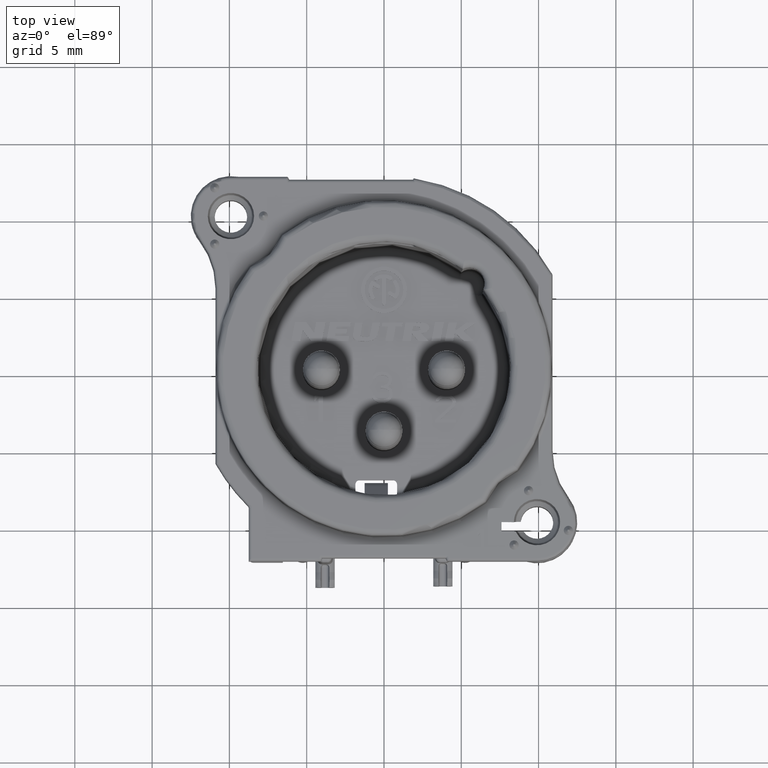
[diagram: clean part render]
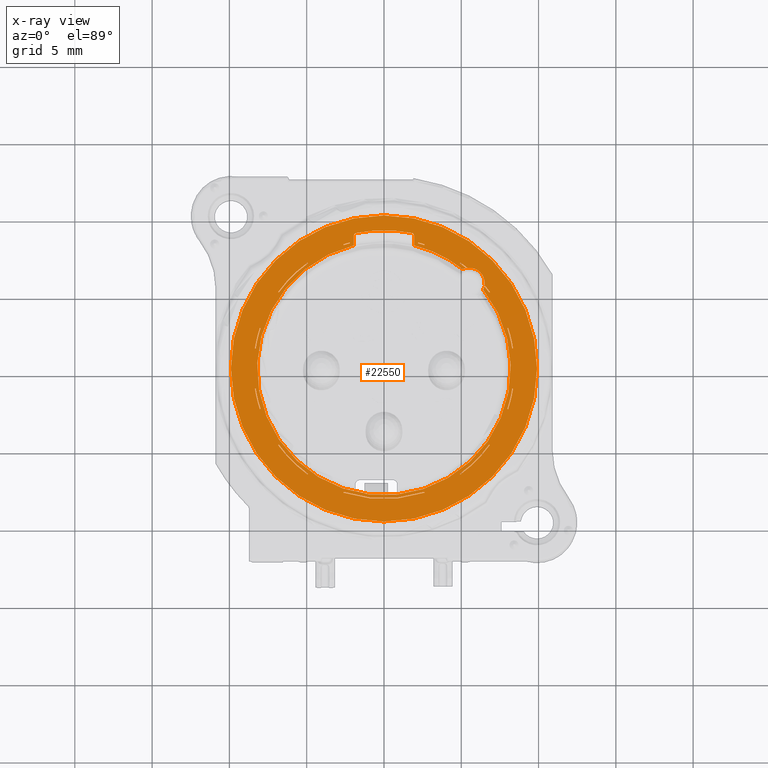
[diagram: x-ray — body ghosted, one internal face saturated and labeled with its STEP entity id]
A machine part, top view, then the same camera in x-ray: the body is ghosted and one INTERNAL B-rep face — a face not visible from any outside direction — is saturated and labeled: STEP entity #22550.
In plain terms, the highlighted planar face has unit normal (0, 0, -1).
Its self-contained STEP definition (entity closure, byte-faithful):
#54=DIRECTION('',(1.E0,-3.526573437755E-11,0.E0));
#55=VECTOR('',#54,5.304026089074E-2);
#56=CARTESIAN_POINT('',(-8.349382194067E0,1.300121908860E0,2.7E0));
#57=LINE('',#56,#55);
#63=CARTESIAN_POINT('',(5.515432893255E0,5.515432893255E0,2.7E0));
#64=DIRECTION('',(0.E0,0.E0,1.E0));
#65=DIRECTION('',(9.081595900515E-1,-4.186241261531E-1,0.E0));
#66=AXIS2_PLACEMENT_3D('',#63,#64,#65);
#68=DIRECTION('',(0.E0,1.E0,0.E0));
#69=VECTOR('',#68,6.140104234412E-1);
#70=CARTESIAN_POINT('',(-1.95E0,7.964766161037E0,2.7E0));
#71=LINE('',#70,#69);
#72=CARTESIAN_POINT('',(0.E0,0.E0,2.7E0));
#73=DIRECTION('',(0.E0,0.E0,-1.E0));
#74=DIRECTION('',(-2.006225857042E-1,9.796686062671E-1,0.E0));
#75=AXIS2_PLACEMENT_3D('',#72,#73,#74);
#77=DIRECTION('',(0.E0,-1.E0,0.E0));
#78=VECTOR('',#77,6.140104234412E-1);
#79=CARTESIAN_POINT('',(1.95E0,8.578776584478E0,2.7E0));
#80=LINE('',#79,#78);
#81=CARTESIAN_POINT('',(0.E0,0.E0,2.7E0));
#82=DIRECTION('',(0.E0,0.E0,-1.E0));
#83=DIRECTION('',(2.378048780488E-1,9.713129464679E-1,0.E0));
#84=AXIS2_PLACEMENT_3D('',#81,#82,#83);
#86=CARTESIAN_POINT('',(5.515432893255E0,5.515432893255E0,2.7E0));
#87=DIRECTION('',(0.E0,0.E0,1.E0));
#88=DIRECTION('',(-1.941287962017E-1,9.809760499040E-1,0.E0));
#89=AXIS2_PLACEMENT_3D('',#86,#87,#88);
#91=CARTESIAN_POINT('',(5.515432893255E0,5.515432893255E0,2.7E0));
#92=DIRECTION('',(0.E0,0.E0,1.E0));
#93=DIRECTION('',(9.921263900771E-1,-1.252406727570E-1,0.E0));
#94=AXIS2_PLACEMENT_3D('',#91,#92,#93);
#106=CARTESIAN_POINT('',(0.E0,0.E0,2.7E0));
#107=DIRECTION('',(0.E0,0.E0,-1.E0));
#108=DIRECTION('',(0.E0,1.E0,0.E0));
#109=AXIS2_PLACEMENT_3D('',#106,#107,#108);
#147=CARTESIAN_POINT('',(0.E0,0.E0,2.7E0));
#148=DIRECTION('',(0.E0,0.E0,-1.E0));
#149=DIRECTION('',(0.E0,-1.E0,0.E0));
#150=AXIS2_PLACEMENT_3D('',#147,#148,#149);
#1312=CARTESIAN_POINT('',(0.E0,0.E0,2.7E0));
#1313=DIRECTION('',(0.E0,0.E0,-1.E0));
#1314=DIRECTION('',(7.701253589742E-1,6.378925704731E-1,0.E0));
#1315=AXIS2_PLACEMENT_3D('',#1312,#1313,#1314);
#1339=CARTESIAN_POINT('',(0.E0,0.E0,2.7E0));
#1340=DIRECTION('',(0.E0,0.E0,-1.E0));
#1341=DIRECTION('',(9.502481660337E-1,3.114938570015E-1,0.E0));
#1342=AXIS2_PLACEMENT_3D('',#1339,#1340,#1341);
#1375=CARTESIAN_POINT('',(0.E0,0.E0,2.7E0));
#1376=DIRECTION('',(0.E0,0.E0,-1.E0));
#1377=DIRECTION('',(9.880925673401E-1,-1.538605809400E-1,0.E0));
#1378=AXIS2_PLACEMENT_3D('',#1375,#1376,#1377);
#1411=CARTESIAN_POINT('',(0.E0,0.E0,2.7E0));
#1412=DIRECTION('',(0.E0,0.E0,-1.E0));
#1413=DIRECTION('',(8.105456819702E-1,-5.856754198696E-1,0.E0));
#1414=AXIS2_PLACEMENT_3D('',#1411,#1412,#1413);
#1447=CARTESIAN_POINT('',(0.E0,0.E0,2.7E0));
#1448=DIRECTION('',(0.E0,0.E0,-1.E0));
#1449=DIRECTION('',(3.114938570028E-1,-9.502481660332E-1,0.E0));
#1450=AXIS2_PLACEMENT_3D('',#1447,#1448,#1449);
#1483=CARTESIAN_POINT('',(0.E0,0.E0,2.7E0));
#1484=DIRECTION('',(0.E0,0.E0,-1.E0));
#1485=DIRECTION('',(-5.856754198634E-1,-8.105456819747E-1,0.E0));
#1486=AXIS2_PLACEMENT_3D('',#1483,#1484,#1485);
#1519=CARTESIAN_POINT('',(0.E0,0.E0,2.7E0));
#1520=DIRECTION('',(0.E0,0.E0,-1.E0));
#1521=DIRECTION('',(-9.502481660302E-1,-3.114938570120E-1,0.E0));
#1522=AXIS2_PLACEMENT_3D('',#1519,#1520,#1521);
#1555=CARTESIAN_POINT('',(0.E0,0.E0,2.7E0));
#1556=DIRECTION('',(0.E0,0.E0,-1.E0));
#1557=DIRECTION('',(-9.880925673419E-1,1.538605809285E-1,0.E0));
#1558=AXIS2_PLACEMENT_3D('',#1555,#1556,#1557);
#1591=CARTESIAN_POINT('',(0.E0,0.E0,2.7E0));
#1592=DIRECTION('',(0.E0,0.E0,-1.E0));
#1593=DIRECTION('',(-8.105456819795E-1,5.856754198568E-1,0.E0));
#1594=AXIS2_PLACEMENT_3D('',#1591,#1592,#1593);
#1627=CARTESIAN_POINT('',(0.E0,0.E0,2.7E0));
#1628=DIRECTION('',(0.E0,0.E0,-1.E0));
#1629=DIRECTION('',(-3.114938570140E-1,9.502481660296E-1,0.E0));
#1630=AXIS2_PLACEMENT_3D('',#1627,#1628,#1629);
#1663=CARTESIAN_POINT('',(0.E0,0.E0,2.7E0));
#1664=DIRECTION('',(0.E0,0.E0,-1.E0));
#1665=DIRECTION('',(2.603694566774E-1,9.655090605631E-1,0.E0));
#1666=AXIS2_PLACEMENT_3D('',#1663,#1664,#1665);
#1699=CARTESIAN_POINT('',(0.E0,0.E0,2.7E0));
#1700=DIRECTION('',(0.E0,0.E0,-1.E0));
#1701=DIRECTION('',(5.856754198668E-1,8.105456819722E-1,0.E0));
#1702=AXIS2_PLACEMENT_3D('',#1699,#1700,#1701);
#1749=CARTESIAN_POINT('',(0.E0,0.E0,2.7E0));
#1750=DIRECTION('',(0.E0,0.E0,-1.E0));
#1751=DIRECTION('',(5.864628337465E-1,8.099761383115E-1,0.E0));
#1752=AXIS2_PLACEMENT_3D('',#1749,#1750,#1751);
#2390=DIRECTION('',(-1.404519808107E-11,-1.E0,0.E0));
#2391=VECTOR('',#2390,5.428910072408E-2);
#2392=CARTESIAN_POINT('',(2.200121908860E0,8.158551561691E0,2.7E0));
#2393=LINE('',#2392,#2391);
#2399=CARTESIAN_POINT('',(0.E0,0.E0,2.7E0));
#2400=DIRECTION('',(0.E0,0.E0,-1.E0));
#2401=DIRECTION('',(2.619942776560E-1,9.650694267645E-1,0.E0));
#2402=AXIS2_PLACEMENT_3D('',#2399,#2400,#2401);
#2414=DIRECTION('',(4.539904997543E-1,8.910065241809E-1,0.E0));
#2415=VECTOR('',#2414,5.304026079342E-2);
#2416=CARTESIAN_POINT('',(2.608043317218E0,7.982337784483E0,2.7E0));
#2417=LINE('',#2416,#2415);
#2538=DIRECTION('',(-4.539904997709E-1,-8.910065241724E-1,0.E0));
#2539=VECTOR('',#2538,5.304026071909E-2);
#2540=CARTESIAN_POINT('',(4.948957297757E0,6.849111012578E0,2.7E0));
#2541=LINE('',#2540,#2539);
#2624=DIRECTION('',(3.034809832076E-12,1.E0,0.E0));
#2625=VECTOR('',#2624,5.428910079076E-2);
#2626=CARTESIAN_POINT('',(-2.200121908860E0,8.104262460966E0,2.7E0));
#2627=LINE('',#2626,#2625);
#2633=CARTESIAN_POINT('',(0.E0,0.E0,2.7E0));
#2634=DIRECTION('',(0.E0,0.E0,-1.E0));
#2635=DIRECTION('',(-3.105702562383E-1,9.505504278785E-1,0.E0));
#2636=AXIS2_PLACEMENT_3D('',#2633,#2634,#2635);
#2648=DIRECTION('',(4.539904997081E-1,-8.910065242044E-1,0.E0));
#2649=VECTOR('',#2648,5.304026089580E-2);
#2650=CARTESIAN_POINT('',(-2.632123091769E0,8.029597002986E0,2.7E0));
#2651=LINE('',#2650,#2649);
#2766=DIRECTION('',(-4.539904997246E-1,8.910065241960E-1,0.E0));
#2767=VECTOR('',#2766,5.304026065712E-2);
#2768=CARTESIAN_POINT('',(-4.924877523288E0,6.801851794231E0,2.7E0));
#2769=LINE('',#2768,#2767);
#2775=CARTESIAN_POINT('',(0.E0,0.E0,2.7E0));
#2776=DIRECTION('',(0.E0,0.E0,-1.E0));
#2777=DIRECTION('',(-8.099761383115E-1,5.864628337465E-1,0.E0));
#2778=AXIS2_PLACEMENT_3D('',#2775,#2776,#2777);
#2790=DIRECTION('',(8.910065241724E-1,-4.539904997709E-1,0.E0));
#2791=VECTOR('',#2790,5.304026094476E-2);
#2792=CARTESIAN_POINT('',(-6.849111012779E0,4.948957297860E0,2.7E0));
#2793=LINE('',#2792,#2791);
#2908=DIRECTION('',(-8.910065241809E-1,4.539904997542E-1,0.E0));
#2909=VECTOR('',#2908,5.304026074572E-2);
#2910=CARTESIAN_POINT('',(-7.982337784483E0,2.608043317218E0,2.7E0));
#2911=LINE('',#2910,#2909);
#2917=CARTESIAN_POINT('',(0.E0,0.E0,2.7E0));
#2918=DIRECTION('',(0.E0,0.E0,-1.E0));
#2919=DIRECTION('',(-9.879425786437E-1,1.548207392530E-1,0.E0));
#2920=AXIS2_PLACEMENT_3D('',#2917,#2918,#2919);
#16350=CARTESIAN_POINT('',(0.E0,0.E0,2.7E0));
#16351=DIRECTION('',(0.E0,0.E0,1.E0));
#16352=DIRECTION('',(-2.378048780488E-1,9.713129464679E-1,0.E0));
#16353=AXIS2_PLACEMENT_3D('',#16350,#16351,#16352);
#16376=CARTESIAN_POINT('',(1.95E0,8.578776584478E0,2.7E0));
#16378=CARTESIAN_POINT('',(1.95E0,8.578776584478E0,2.7E0));
#16379=CARTESIAN_POINT('',(1.950000000032E0,8.602134908610E0,2.7E0));
#16380=CARTESIAN_POINT('',(1.942273362003E0,8.645624592729E0,2.7E0));
#16381=CARTESIAN_POINT('',(1.909973589364E0,8.703636616568E0,2.699999999999E0));
#16382=CARTESIAN_POINT('',(1.859457158406E0,8.747109287319E0,2.700000000005E0));
#16383=CARTESIAN_POINT('',(1.818430073848E0,8.763353037773E0,2.699999999989E0));
#16384=CARTESIAN_POINT('',(1.795572142117E0,8.768034026171E0,2.699999999989E0));
#16390=CARTESIAN_POINT('',(1.795572142117E0,8.768034026171E0,2.699999999989E0));
#16396=CARTESIAN_POINT('',(-1.795572142117E0,8.768034026171E0,
2.699999999989E0));
#16403=CARTESIAN_POINT('',(-1.795572142117E0,8.768034026171E0,
2.699999999989E0));
#16404=CARTESIAN_POINT('',(-1.818465818642E0,8.763345717734E0,
2.699999999989E0));
#16405=CARTESIAN_POINT('',(-1.859532717103E0,8.747022878452E0,
2.700000000005E0));
#16406=CARTESIAN_POINT('',(-1.909784034211E0,8.703872645540E0,
2.699999999999E0));
#16407=CARTESIAN_POINT('',(-1.942353347184E0,8.645505213761E0,2.7E0));
#16408=CARTESIAN_POINT('',(-1.950000000032E0,8.602085701230E0,2.7E0));
#16409=CARTESIAN_POINT('',(-1.95E0,8.578776584478E0,2.7E0));
#16419=CARTESIAN_POINT('',(-1.95E0,8.578776584478E0,2.7E0));
#16823=CARTESIAN_POINT('',(0.E0,0.E0,2.7E0));
#16824=DIRECTION('',(0.E0,0.E0,-1.E0));
#16825=DIRECTION('',(7.736034815011E-1,6.336699877771E-1,0.E0));
#16826=AXIS2_PLACEMENT_3D('',#16823,#16824,#16825);
#16833=DIRECTION('',(8.910065241959E-1,4.539904997248E-1,0.E0));
#16834=VECTOR('',#16833,5.304026071952E-2);
#16835=CARTESIAN_POINT('',(6.801851794231E0,4.924877523288E0,2.7E0));
#16836=LINE('',#16835,#16834);
#16957=DIRECTION('',(-8.910065242043E-1,-4.539904997082E-1,0.E0));
#16958=VECTOR('',#16957,5.304026065397E-2);
#16959=CARTESIAN_POINT('',(8.029597002771E0,2.632123091659E0,2.7E0));
#16960=LINE('',#16959,#16958);
#16966=CARTESIAN_POINT('',(0.E0,0.E0,2.7E0));
#16967=DIRECTION('',(0.E0,0.E0,-1.E0));
#16968=DIRECTION('',(9.505504278785E-1,3.105702562383E-1,0.E0));
#16969=AXIS2_PLACEMENT_3D('',#16966,#16967,#16968);
#16981=DIRECTION('',(1.E0,-1.658628197033E-11,0.E0));
#16982=VECTOR('',#16981,5.304026099921E-2);
#16983=CARTESIAN_POINT('',(8.296341933176E0,1.300121908861E0,2.7E0));
#16984=LINE('',#16983,#16982);
#17312=DIRECTION('',(-1.E0,3.520293940750E-11,0.E0));
#17313=VECTOR('',#17312,5.304026067826E-2);
#17314=CARTESIAN_POINT('',(8.349382193855E0,-1.300121908860E0,2.7E0));
#17315=LINE('',#17314,#17313);
#17321=CARTESIAN_POINT('',(0.E0,0.E0,2.7E0));
#17322=DIRECTION('',(0.E0,0.E0,-1.E0));
#17323=DIRECTION('',(9.879425786437E-1,-1.548207392530E-1,0.E0));
#17324=AXIS2_PLACEMENT_3D('',#17321,#17322,#17323);
#17336=DIRECTION('',(8.910065241808E-1,-4.539904997543E-1,0.E0));
#17337=VECTOR('',#17336,5.304026096852E-2);
#17338=CARTESIAN_POINT('',(7.982337784483E0,-2.608043317218E0,2.7E0));
#17339=LINE('',#17338,#17337);
#17460=DIRECTION('',(-8.910065241724E-1,4.539904997709E-1,0.E0));
#17461=VECTOR('',#17460,5.304026065668E-2);
#17462=CARTESIAN_POINT('',(6.849111012522E0,-4.948957297729E0,2.7E0));
#17463=LINE('',#17462,#17461);
#17469=CARTESIAN_POINT('',(0.E0,0.E0,2.7E0));
#17470=DIRECTION('',(0.E0,0.E0,-1.E0));
#17471=DIRECTION('',(8.099761383115E-1,-5.864628337465E-1,0.E0));
#17472=AXIS2_PLACEMENT_3D('',#17469,#17470,#17471);
#17484=DIRECTION('',(4.539904997247E-1,-8.910065241959E-1,0.E0));
#17485=VECTOR('',#17484,5.304026094520E-2);
#17486=CARTESIAN_POINT('',(4.924877523288E0,-6.801851794231E0,2.7E0));
#17487=LINE('',#17486,#17485);
#17608=DIRECTION('',(-4.539904997082E-1,8.910065242043E-1,0.E0));
#17609=VECTOR('',#17608,5.304026067990E-2);
#17610=CARTESIAN_POINT('',(2.632123091671E0,-8.029597002794E0,2.7E0));
#17611=LINE('',#17610,#17609);
#17617=CARTESIAN_POINT('',(0.E0,0.E0,2.7E0));
#17618=DIRECTION('',(0.E0,0.E0,-1.E0));
#17619=DIRECTION('',(3.105702562383E-1,-9.505504278785E-1,0.E0));
#17620=AXIS2_PLACEMENT_3D('',#17617,#17618,#17619);
#17632=DIRECTION('',(-4.539904997543E-1,-8.910065241809E-1,0.E0));
#17633=VECTOR('',#17632,5.304026085444E-2);
#17634=CARTESIAN_POINT('',(-2.608043317218E0,-7.982337784483E0,2.7E0));
#17635=LINE('',#17634,#17633);
#17756=DIRECTION('',(4.539904997709E-1,8.910065241724E-1,0.E0));
#17757=VECTOR('',#17756,5.304026079510E-2);
#17758=CARTESIAN_POINT('',(-4.948957297792E0,-6.849111012645E0,2.7E0));
#17759=LINE('',#17758,#17757);
#17765=CARTESIAN_POINT('',(0.E0,0.E0,2.7E0));
#17766=DIRECTION('',(0.E0,0.E0,-1.E0));
#17767=DIRECTION('',(-5.864628337465E-1,-8.099761383115E-1,0.E0));
#17768=AXIS2_PLACEMENT_3D('',#17765,#17766,#17767);
#17780=DIRECTION('',(-8.910065241959E-1,-4.539904997247E-1,0.E0));
#17781=VECTOR('',#17780,5.304026079553E-2);
#17782=CARTESIAN_POINT('',(-6.801851794231E0,-4.924877523288E0,2.7E0));
#17783=LINE('',#17782,#17781);
#17904=DIRECTION('',(8.910065242043E-1,4.539904997082E-1,0.E0));
#17905=VECTOR('',#17904,5.304026085638E-2);
#17906=CARTESIAN_POINT('',(-8.029597002951E0,-2.632123091751E0,2.7E0));
#17907=LINE('',#17906,#17905);
#17913=CARTESIAN_POINT('',(0.E0,0.E0,2.7E0));
#17914=DIRECTION('',(0.E0,0.E0,-1.E0));
#17915=DIRECTION('',(-9.505504278785E-1,-3.105702562383E-1,0.E0));
#17916=AXIS2_PLACEMENT_3D('',#17913,#17914,#17915);
#17928=DIRECTION('',(-1.E0,1.669094055824E-11,0.E0));
#17929=VECTOR('',#17928,5.304026077780E-2);
#17930=CARTESIAN_POINT('',(-8.296341933176E0,-1.300121908860E0,2.7E0));
#17931=LINE('',#17930,#17929);
#21403=CARTESIAN_POINT('',(1.95E0,7.964766161037E0,2.7E0));
#21404=CARTESIAN_POINT('',(5.096808767102E0,6.423592483307E0,2.7E0));
#21405=VERTEX_POINT('',#21403);
#21406=VERTEX_POINT('',#21404);
#21407=CARTESIAN_POINT('',(-1.95E0,7.964766161037E0,2.7E0));
#21408=CARTESIAN_POINT('',(6.423592483307E0,5.096808767102E0,2.7E0));
#21409=VERTEX_POINT('',#21407);
#21410=VERTEX_POINT('',#21408);
#21427=CARTESIAN_POINT('',(0.E0,9.903460533872E0,2.7E0));
#21428=CARTESIAN_POINT('',(0.E0,-9.903460533872E0,2.7E0));
#21429=VERTEX_POINT('',#21427);
#21430=VERTEX_POINT('',#21428);
#21611=VERTEX_POINT('',#16390);
#21612=VERTEX_POINT('',#16376);
#21621=VERTEX_POINT('',#16419);
#21622=VERTEX_POINT('',#16396);
#21654=CARTESIAN_POINT('',(6.507559283332E0,5.390192220498E0,2.7E0));
#21655=CARTESIAN_POINT('',(6.849111012665E0,4.948957297875E0,2.7E0));
#21656=VERTEX_POINT('',#21654);
#21657=VERTEX_POINT('',#21655);
#21658=CARTESIAN_POINT('',(8.029597002984E0,2.632123091662E0,2.7E0));
#21659=CARTESIAN_POINT('',(8.349382194047E0,1.300121908797E0,2.7E0));
#21660=VERTEX_POINT('',#21658);
#21661=VERTEX_POINT('',#21659);
#21662=CARTESIAN_POINT('',(8.349382194024E0,-1.300121908943E0,2.7E0));
#21663=CARTESIAN_POINT('',(8.029597002939E0,-2.632123091800E0,2.7E0));
#21664=VERTEX_POINT('',#21662);
#21665=VERTEX_POINT('',#21663);
#21666=CARTESIAN_POINT('',(6.849111012648E0,-4.948957297898E0,2.7E0));
#21667=CARTESIAN_POINT('',(4.948957297790E0,-6.849111012726E0,2.7E0));
#21668=VERTEX_POINT('',#21666);
#21669=VERTEX_POINT('',#21667);
#21670=CARTESIAN_POINT('',(2.632123091674E0,-8.029597002981E0,2.7E0));
#21671=CARTESIAN_POINT('',(-2.632123091750E0,-8.029597002956E0,2.7E0));
#21672=VERTEX_POINT('',#21670);
#21673=VERTEX_POINT('',#21671);
#21674=CARTESIAN_POINT('',(-4.948957297846E0,-6.849111012686E0,2.7E0));
#21675=CARTESIAN_POINT('',(-6.849111012686E0,-4.948957297846E0,2.7E0));
#21676=VERTEX_POINT('',#21674);
#21677=VERTEX_POINT('',#21675);
#21678=CARTESIAN_POINT('',(-8.029597002955E0,-2.632123091751E0,2.7E0));
#21679=CARTESIAN_POINT('',(-8.349382194031E0,-1.300121908898E0,2.7E0));
#21680=VERTEX_POINT('',#21678);
#21681=VERTEX_POINT('',#21679);
#21682=CARTESIAN_POINT('',(-8.349382194039E0,1.300121908846E0,2.7E0));
#21683=CARTESIAN_POINT('',(-8.029597002971E0,2.632123091702E0,2.7E0));
#21684=VERTEX_POINT('',#21682);
#21685=VERTEX_POINT('',#21683);
#21686=CARTESIAN_POINT('',(-6.849111012726E0,4.948957297790E0,2.7E0));
#21687=CARTESIAN_POINT('',(-4.948957297898E0,6.849111012649E0,2.7E0));
#21688=VERTEX_POINT('',#21686);
#21689=VERTEX_POINT('',#21687);
#21690=CARTESIAN_POINT('',(-2.632123091769E0,8.029597002950E0,2.7E0));
#21691=CARTESIAN_POINT('',(-2.200121908874E0,8.158551561772E0,2.7E0));
#21692=VERTEX_POINT('',#21690);
#21693=VERTEX_POINT('',#21691);
#21694=CARTESIAN_POINT('',(2.200121908924E0,8.158551561759E0,2.7E0));
#21695=CARTESIAN_POINT('',(2.632123091723E0,8.029597002964E0,2.7E0));
#21696=VERTEX_POINT('',#21694);
#21697=VERTEX_POINT('',#21695);
#21698=CARTESIAN_POINT('',(4.948957297875E0,6.849111012665E0,2.7E0));
#21699=CARTESIAN_POINT('',(5.390192220498E0,6.507559283332E0,2.7E0));
#21700=VERTEX_POINT('',#21698);
#21701=VERTEX_POINT('',#21699);
#21765=CARTESIAN_POINT('',(-2.200121908860E0,8.104262460966E0,2.7E0));
#21766=VERTEX_POINT('',#21765);
#21767=CARTESIAN_POINT('',(-2.608043317220E0,7.982337784483E0,2.7E0));
#21768=VERTEX_POINT('',#21767);
#21769=CARTESIAN_POINT('',(-4.924877523288E0,6.801851794231E0,2.7E0));
#21770=VERTEX_POINT('',#21769);
#21771=CARTESIAN_POINT('',(-6.801851794233E0,4.924877523286E0,2.7E0));
#21772=VERTEX_POINT('',#21771);
#21773=CARTESIAN_POINT('',(-7.982337784483E0,2.608043317218E0,2.7E0));
#21774=VERTEX_POINT('',#21773);
#21775=CARTESIAN_POINT('',(-8.296341933176E0,1.300121908858E0,2.7E0));
#21776=VERTEX_POINT('',#21775);
#21777=CARTESIAN_POINT('',(-7.982337784483E0,-2.608043317220E0,2.7E0));
#21778=VERTEX_POINT('',#21777);
#21779=CARTESIAN_POINT('',(-6.801851794231E0,-4.924877523288E0,2.7E0));
#21780=VERTEX_POINT('',#21779);
#21781=CARTESIAN_POINT('',(-4.924877523286E0,-6.801851794233E0,2.7E0));
#21782=VERTEX_POINT('',#21781);
#21783=CARTESIAN_POINT('',(-2.608043317218E0,-7.982337784483E0,2.7E0));
#21784=VERTEX_POINT('',#21783);
#21785=CARTESIAN_POINT('',(2.608043317220E0,-7.982337784483E0,2.7E0));
#21786=VERTEX_POINT('',#21785);
#21787=CARTESIAN_POINT('',(4.924877523288E0,-6.801851794231E0,2.7E0));
#21788=VERTEX_POINT('',#21787);
#21789=CARTESIAN_POINT('',(6.801851794233E0,-4.924877523286E0,2.7E0));
#21790=VERTEX_POINT('',#21789);
#21791=CARTESIAN_POINT('',(7.982337784483E0,-2.608043317218E0,2.7E0));
#21792=VERTEX_POINT('',#21791);
#21793=CARTESIAN_POINT('',(8.296341933176E0,-1.300121908858E0,2.7E0));
#21794=VERTEX_POINT('',#21793);
#21795=CARTESIAN_POINT('',(8.296341933176E0,1.300121908861E0,2.7E0));
#21796=VERTEX_POINT('',#21795);
#21797=CARTESIAN_POINT('',(7.982337784483E0,2.608043317220E0,2.7E0));
#21798=VERTEX_POINT('',#21797);
#21799=CARTESIAN_POINT('',(6.801851794231E0,4.924877523288E0,2.7E0));
#21800=VERTEX_POINT('',#21799);
#21801=CARTESIAN_POINT('',(4.924877523286E0,6.801851794233E0,2.7E0));
#21802=VERTEX_POINT('',#21801);
#21803=CARTESIAN_POINT('',(2.608043317218E0,7.982337784483E0,2.7E0));
#21804=VERTEX_POINT('',#21803);
#21805=CARTESIAN_POINT('',(2.200121908859E0,8.104262460967E0,2.7E0));
#21806=VERTEX_POINT('',#21805);
#21807=CARTESIAN_POINT('',(-8.296341933176E0,-1.300121908860E0,2.7E0));
#21808=VERTEX_POINT('',#21807);
#21809=CARTESIAN_POINT('',(6.496408943159E0,5.321304097053E0,2.7E0));
#21810=VERTEX_POINT('',#21809);
#21811=CARTESIAN_POINT('',(5.321304097053E0,6.496408943159E0,2.7E0));
#21812=VERTEX_POINT('',#21811);
#22406=CARTESIAN_POINT('',(0.E0,0.E0,2.7E0));
#22407=DIRECTION('',(0.E0,0.E0,-1.E0));
#22408=DIRECTION('',(0.E0,-1.E0,0.E0));
#22409=AXIS2_PLACEMENT_3D('',#22406,#22407,#22408);
#22410=PLANE('',#22409);
#22412=ORIENTED_EDGE('',*,*,#22411,.F.);
#22414=ORIENTED_EDGE('',*,*,#22413,.F.);
#22415=EDGE_LOOP('',(#22412,#22414));
#22416=FACE_OUTER_BOUND('',#22415,.F.);
#22418=ORIENTED_EDGE('',*,*,#22417,.T.);
#22420=ORIENTED_EDGE('',*,*,#22419,.F.);
#22422=ORIENTED_EDGE('',*,*,#22421,.F.);
#22424=ORIENTED_EDGE('',*,*,#22423,.F.);
#22426=ORIENTED_EDGE('',*,*,#22425,.F.);
#22428=ORIENTED_EDGE('',*,*,#22427,.T.);
#22430=ORIENTED_EDGE('',*,*,#22429,.F.);
#22432=ORIENTED_EDGE('',*,*,#22431,.T.);
#22434=ORIENTED_EDGE('',*,*,#22433,.F.);
#22436=ORIENTED_EDGE('',*,*,#22435,.T.);
#22438=ORIENTED_EDGE('',*,*,#22437,.T.);
#22440=ORIENTED_EDGE('',*,*,#22439,.F.);
#22442=ORIENTED_EDGE('',*,*,#22441,.F.);
#22444=ORIENTED_EDGE('',*,*,#22443,.F.);
#22446=ORIENTED_EDGE('',*,*,#22445,.T.);
#22448=ORIENTED_EDGE('',*,*,#22447,.F.);
#22449=EDGE_LOOP('',(#22418,#22420,#22422,#22424,#22426,#22428,#22430,#22432,
#22434,#22436,#22438,#22440,#22442,#22444,#22446,#22448));
#22450=FACE_BOUND('',#22449,.F.);
#22452=ORIENTED_EDGE('',*,*,#22451,.T.);
#22454=ORIENTED_EDGE('',*,*,#22453,.F.);
#22456=ORIENTED_EDGE('',*,*,#22455,.F.);
#22458=ORIENTED_EDGE('',*,*,#22457,.F.);
#22459=EDGE_LOOP('',(#22452,#22454,#22456,#22458));
#22460=FACE_BOUND('',#22459,.F.);
#22462=ORIENTED_EDGE('',*,*,#22461,.T.);
#22464=ORIENTED_EDGE('',*,*,#22463,.F.);
#22466=ORIENTED_EDGE('',*,*,#22465,.F.);
#22468=ORIENTED_EDGE('',*,*,#22467,.F.);
#22469=EDGE_LOOP('',(#22462,#22464,#22466,#22468));
#22470=FACE_BOUND('',#22469,.F.);
#22472=ORIENTED_EDGE('',*,*,#22471,.T.);
#22474=ORIENTED_EDGE('',*,*,#22473,.F.);
#22476=ORIENTED_EDGE('',*,*,#22475,.F.);
#22478=ORIENTED_EDGE('',*,*,#22477,.F.);
#22479=EDGE_LOOP('',(#22472,#22474,#22476,#22478));
#22480=FACE_BOUND('',#22479,.F.);
#22482=ORIENTED_EDGE('',*,*,#22481,.T.);
#22484=ORIENTED_EDGE('',*,*,#22483,.F.);
#22486=ORIENTED_EDGE('',*,*,#22485,.F.);
#22488=ORIENTED_EDGE('',*,*,#22487,.F.);
#22489=EDGE_LOOP('',(#22482,#22484,#22486,#22488));
#22490=FACE_BOUND('',#22489,.F.);
#22492=ORIENTED_EDGE('',*,*,#22491,.T.);
#22494=ORIENTED_EDGE('',*,*,#22493,.F.);
#22496=ORIENTED_EDGE('',*,*,#22495,.F.);
#22498=ORIENTED_EDGE('',*,*,#22497,.F.);
#22499=EDGE_LOOP('',(#22492,#22494,#22496,#22498));
#22500=FACE_BOUND('',#22499,.F.);
#22502=ORIENTED_EDGE('',*,*,#22501,.T.);
#22504=ORIENTED_EDGE('',*,*,#22503,.F.);
#22506=ORIENTED_EDGE('',*,*,#22505,.F.);
#22508=ORIENTED_EDGE('',*,*,#22507,.F.);
#22509=EDGE_LOOP('',(#22502,#22504,#22506,#22508));
#22510=FACE_BOUND('',#22509,.F.);
#22512=ORIENTED_EDGE('',*,*,#22511,.T.);
#22514=ORIENTED_EDGE('',*,*,#22513,.F.);
#22516=ORIENTED_EDGE('',*,*,#22515,.F.);
#22517=ORIENTED_EDGE('',*,*,#22397,.F.);
#22518=EDGE_LOOP('',(#22512,#22514,#22516,#22517));
#22519=FACE_BOUND('',#22518,.F.);
#22521=ORIENTED_EDGE('',*,*,#22520,.T.);
#22523=ORIENTED_EDGE('',*,*,#22522,.F.);
#22525=ORIENTED_EDGE('',*,*,#22524,.F.);
#22527=ORIENTED_EDGE('',*,*,#22526,.F.);
#22528=EDGE_LOOP('',(#22521,#22523,#22525,#22527));
#22529=FACE_BOUND('',#22528,.F.);
#22531=ORIENTED_EDGE('',*,*,#22530,.T.);
#22533=ORIENTED_EDGE('',*,*,#22532,.F.);
#22535=ORIENTED_EDGE('',*,*,#22534,.F.);
#22537=ORIENTED_EDGE('',*,*,#22536,.F.);
#22538=EDGE_LOOP('',(#22531,#22533,#22535,#22537));
#22539=FACE_BOUND('',#22538,.F.);
#22541=ORIENTED_EDGE('',*,*,#22540,.T.);
#22543=ORIENTED_EDGE('',*,*,#22542,.F.);
#22545=ORIENTED_EDGE('',*,*,#22544,.F.);
#22547=ORIENTED_EDGE('',*,*,#22546,.F.);
#22548=EDGE_LOOP('',(#22541,#22543,#22545,#22547));
#22549=FACE_BOUND('',#22548,.F.);
#22550=ADVANCED_FACE('',(#22416,#22450,#22460,#22470,#22480,#22490,#22500,
#22510,#22519,#22529,#22539,#22549),#22410,.T.);
#67=CIRCLE('',#66,1.E0);
#76=CIRCLE('',#75,8.95E0);
#85=CIRCLE('',#84,8.2E0);
#90=CIRCLE('',#89,1.E0);
#95=CIRCLE('',#94,1.E0);
#110=CIRCLE('',#109,9.903460533872E0);
#151=CIRCLE('',#150,9.903460533872E0);
#1316=CIRCLE('',#1315,8.45E0);
#1343=CIRCLE('',#1342,8.45E0);
#1379=CIRCLE('',#1378,8.45E0);
#1415=CIRCLE('',#1414,8.45E0);
#1451=CIRCLE('',#1450,8.45E0);
#1487=CIRCLE('',#1486,8.45E0);
#1523=CIRCLE('',#1522,8.45E0);
#1559=CIRCLE('',#1558,8.45E0);
#1595=CIRCLE('',#1594,8.45E0);
#1631=CIRCLE('',#1630,8.45E0);
#1667=CIRCLE('',#1666,8.45E0);
#1703=CIRCLE('',#1702,8.45E0);
#1753=CIRCLE('',#1752,8.397595277821E0);
#2403=CIRCLE('',#2402,8.397595277821E0);
#2637=CIRCLE('',#2636,8.397595277821E0);
#2779=CIRCLE('',#2778,8.397595277821E0);
#2921=CIRCLE('',#2920,8.397595277821E0);
#16354=CIRCLE('',#16353,8.2E0);
#16385=B_SPLINE_CURVE_WITH_KNOTS('',3,(#16378,#16379,#16380,#16381,#16382,
#16383,#16384),.UNSPECIFIED.,.F.,.F.,(4,1,1,1,4),(0.E0,2.5E-1,5.E-1,7.5E-1,
1.E0),.UNSPECIFIED.);
#16410=B_SPLINE_CURVE_WITH_KNOTS('',3,(#16403,#16404,#16405,#16406,#16407,
#16408,#16409),.UNSPECIFIED.,.F.,.F.,(4,1,1,1,4),(0.E0,2.5E-1,5.E-1,7.5E-1,
1.E0),.UNSPECIFIED.);
#16827=CIRCLE('',#16826,8.397595277821E0);
#16970=CIRCLE('',#16969,8.397595277821E0);
#17325=CIRCLE('',#17324,8.397595277821E0);
#17473=CIRCLE('',#17472,8.397595277821E0);
#17621=CIRCLE('',#17620,8.397595277821E0);
#17769=CIRCLE('',#17768,8.397595277821E0);
#17917=CIRCLE('',#17916,8.397595277821E0);
#22397=EDGE_CURVE('',#21684,#21776,#57,.T.);
#22411=EDGE_CURVE('',#21429,#21430,#110,.T.);
#22413=EDGE_CURVE('',#21430,#21429,#151,.T.);
#22417=EDGE_CURVE('',#21656,#21657,#1316,.T.);
#22419=EDGE_CURVE('',#21800,#21657,#16836,.T.);
#22421=EDGE_CURVE('',#21810,#21800,#16827,.T.);
#22423=EDGE_CURVE('',#21410,#21810,#67,.T.);
#22425=EDGE_CURVE('',#21409,#21410,#16354,.T.);
#22427=EDGE_CURVE('',#21409,#21621,#71,.T.);
#22429=EDGE_CURVE('',#21622,#21621,#16410,.T.);
#22431=EDGE_CURVE('',#21622,#21611,#76,.T.);
#22433=EDGE_CURVE('',#21612,#21611,#16385,.T.);
#22435=EDGE_CURVE('',#21612,#21405,#80,.T.);
#22437=EDGE_CURVE('',#21405,#21406,#85,.T.);
#22439=EDGE_CURVE('',#21812,#21406,#90,.T.);
#22441=EDGE_CURVE('',#21802,#21812,#1753,.T.);
#22443=EDGE_CURVE('',#21700,#21802,#2541,.T.);
#22445=EDGE_CURVE('',#21700,#21701,#1703,.T.);
#22447=EDGE_CURVE('',#21656,#21701,#95,.T.);
#22451=EDGE_CURVE('',#21660,#21661,#1343,.T.);
#22453=EDGE_CURVE('',#21796,#21661,#16984,.T.);
#22455=EDGE_CURVE('',#21798,#21796,#16970,.T.);
#22457=EDGE_CURVE('',#21660,#21798,#16960,.T.);
#22461=EDGE_CURVE('',#21664,#21665,#1379,.T.);
#22463=EDGE_CURVE('',#21792,#21665,#17339,.T.);
#22465=EDGE_CURVE('',#21794,#21792,#17325,.T.);
#22467=EDGE_CURVE('',#21664,#21794,#17315,.T.);
#22471=EDGE_CURVE('',#21668,#21669,#1415,.T.);
#22473=EDGE_CURVE('',#21788,#21669,#17487,.T.);
#22475=EDGE_CURVE('',#21790,#21788,#17473,.T.);
#22477=EDGE_CURVE('',#21668,#21790,#17463,.T.);
#22481=EDGE_CURVE('',#21672,#21673,#1451,.T.);
#22483=EDGE_CURVE('',#21784,#21673,#17635,.T.);
#22485=EDGE_CURVE('',#21786,#21784,#17621,.T.);
#22487=EDGE_CURVE('',#21672,#21786,#17611,.T.);
#22491=EDGE_CURVE('',#21676,#21677,#1487,.T.);
#22493=EDGE_CURVE('',#21780,#21677,#17783,.T.);
#22495=EDGE_CURVE('',#21782,#21780,#17769,.T.);
#22497=EDGE_CURVE('',#21676,#21782,#17759,.T.);
#22501=EDGE_CURVE('',#21680,#21681,#1523,.T.);
#22503=EDGE_CURVE('',#21808,#21681,#17931,.T.);
#22505=EDGE_CURVE('',#21778,#21808,#17917,.T.);
#22507=EDGE_CURVE('',#21680,#21778,#17907,.T.);
#22511=EDGE_CURVE('',#21684,#21685,#1559,.T.);
#22513=EDGE_CURVE('',#21774,#21685,#2911,.T.);
#22515=EDGE_CURVE('',#21776,#21774,#2921,.T.);
#22520=EDGE_CURVE('',#21688,#21689,#1595,.T.);
#22522=EDGE_CURVE('',#21770,#21689,#2769,.T.);
#22524=EDGE_CURVE('',#21772,#21770,#2779,.T.);
#22526=EDGE_CURVE('',#21688,#21772,#2793,.T.);
#22530=EDGE_CURVE('',#21692,#21693,#1631,.T.);
#22532=EDGE_CURVE('',#21766,#21693,#2627,.T.);
#22534=EDGE_CURVE('',#21768,#21766,#2637,.T.);
#22536=EDGE_CURVE('',#21692,#21768,#2651,.T.);
#22540=EDGE_CURVE('',#21696,#21697,#1667,.T.);
#22542=EDGE_CURVE('',#21804,#21697,#2417,.T.);
#22544=EDGE_CURVE('',#21806,#21804,#2403,.T.);
#22546=EDGE_CURVE('',#21696,#21806,#2393,.T.);